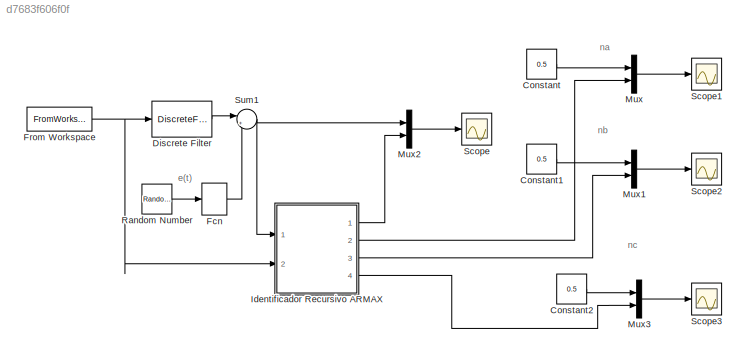
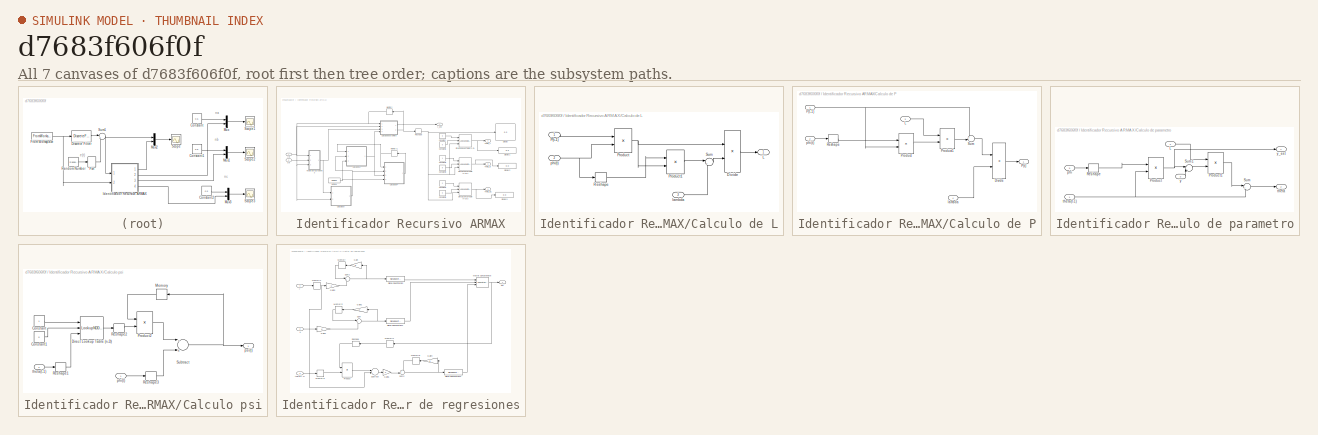
[diagram: thumbnail index - all 7 canvases of the model, root first then tree order]
MODEL slx_d7683f606f0f
KIND model
CONFIG AbsTol = auto
CONFIG FixedStep = auto
CONFIG MaxStep = auto
CONFIG MinStep = auto
CONFIG RelTol = 1e-3
CONFIG SampleTimeConstraint = Unconstrained
CONFIG Solver = ode45
CONFIG SolverMode = Auto
CONFIG SolverName = ode45
CONFIG StartTime = 0.0
CONFIG StopTime = 1000
BLOCK [DiscreteTransferFcn]  Fcn
  Denominator = [1]
  InputPortMap = u0
  Ports = [1, 1]
BLOCK [Constant] Constant
  Value = 0.5
BLOCK [Constant] Constant1
  Value = 0.5
BLOCK [Constant] Constant2
  Value = 0.5
BLOCK [DiscreteFilter] Discrete Filter
  Denominator = [1 -0.8]
  InputPortMap = u0
  Numerator = [0.5]
  Ports = [1, 1]
  SampleTime = 0.01
BLOCK [FromWorkspace] From Workspace
  SampleTime = 0.01
  VariableName = prbs
  ZeroCross = on
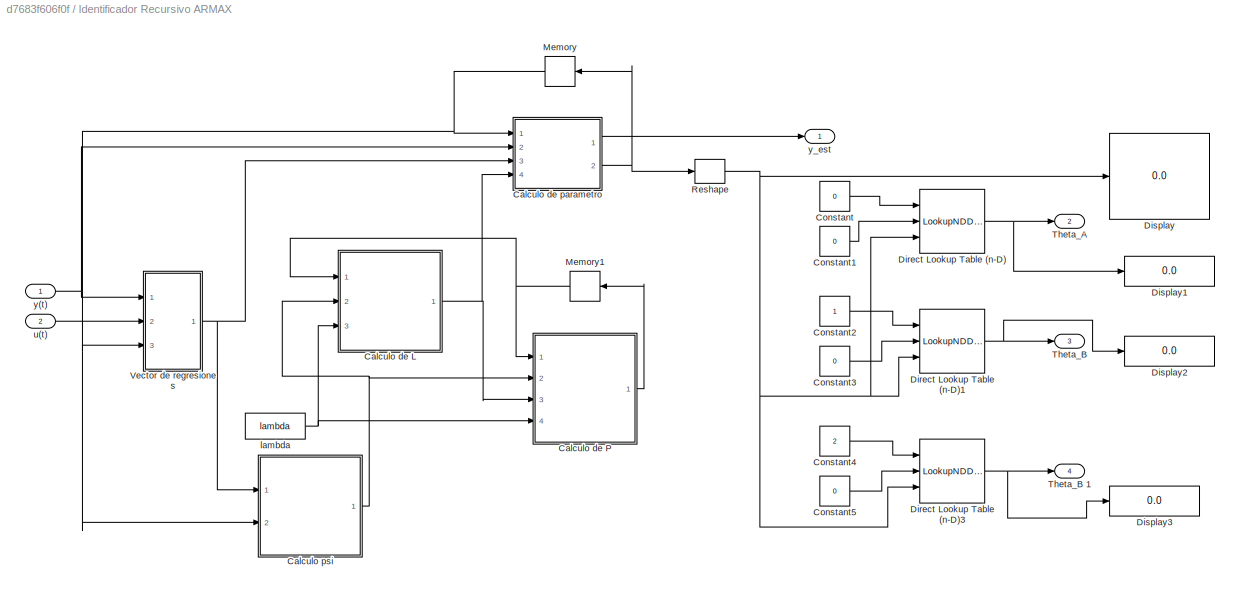
BLOCK [SubSystem] Identificador Recursivo ARMAX
  Ports = [2, 4]
  RequestExecContextInheritance = off
BLOCK [SubSystem] Identificador Recursivo ARMAX/Calculo de L
  Ports = [3, 1]
  RequestExecContextInheritance = off
BLOCK [Product] Identificador Recursivo ARMAX/Calculo de L/Divide
  InputSameDT = off
  Inputs = */
  OutDataTypeStr = Inherit: Inherit via internal rule
  Ports = [2, 1]
  RndMeth = Floor
  SaturateOnIntegerOverflow = off
BLOCK [Outport] Identificador Recursivo ARMAX/Calculo de L/L
  IconDisplay = Port number
BLOCK [Inport] Identificador Recursivo ARMAX/Calculo de L/P(t-1)
  IconDisplay = Port number
BLOCK [Product] Identificador Recursivo ARMAX/Calculo de L/Product
  InputSameDT = off
  Multiplication = Matrix(*)
  OutDataTypeStr = Inherit: Inherit via internal rule
  Ports = [2, 1]
  RndMeth = Floor
  SaturateOnIntegerOverflow = off
BLOCK [Product] Identificador Recursivo ARMAX/Calculo de L/Product1
  InputSameDT = off
  Multiplication = Matrix(*)
  OutDataTypeStr = Inherit: Inherit via internal rule
  Ports = [2, 1]
  RndMeth = Floor
  SaturateOnIntegerOverflow = off
BLOCK [Reshape] Identificador Recursivo ARMAX/Calculo de L/Reshape
  OutputDimensionality = Row vector (2-D)
  Ports = [1, 1]
BLOCK [Sum] Identificador Recursivo ARMAX/Calculo de L/Sum
  IconShape = round
  InputSameDT = off
  Inputs = |++
  OutDataTypeStr = Inherit: Inherit via internal rule
  Ports = [2, 1]
  SaturateOnIntegerOverflow = off
BLOCK [Inport] Identificador Recursivo ARMAX/Calculo de L/lambda
  IconDisplay = Port number
  Port = 3
BLOCK [Inport] Identificador Recursivo ARMAX/Calculo de L/phi(t)
  IconDisplay = Port number
  Port = 2
BLOCK [SubSystem] Identificador Recursivo ARMAX/Calculo de P
  Ports = [4, 1]
  RequestExecContextInheritance = off
BLOCK [Product] Identificador Recursivo ARMAX/Calculo de P/Divide
  InputSameDT = off
  Inputs = */
  OutDataTypeStr = Inherit: Inherit via internal rule
  Ports = [2, 1]
  RndMeth = Floor
  SaturateOnIntegerOverflow = off
BLOCK [Inport] Identificador Recursivo ARMAX/Calculo de P/L
  IconDisplay = Port number
  Port = 3
BLOCK [Outport] Identificador Recursivo ARMAX/Calculo de P/P(t)
  IconDisplay = Port number
BLOCK [Inport] Identificador Recursivo ARMAX/Calculo de P/P(t-1)
  IconDisplay = Port number
BLOCK [Product] Identificador Recursivo ARMAX/Calculo de P/Product
  InputSameDT = off
  Multiplication = Matrix(*)
  OutDataTypeStr = Inherit: Inherit via internal rule
  Ports = [2, 1]
  RndMeth = Floor
  SaturateOnIntegerOverflow = off
BLOCK [Product] Identificador Recursivo ARMAX/Calculo de P/Product1
  InputSameDT = off
  Multiplication = Matrix(*)
  OutDataTypeStr = Inherit: Inherit via internal rule
  Ports = [2, 1]
  RndMeth = Floor
  SaturateOnIntegerOverflow = off
BLOCK [Reshape] Identificador Recursivo ARMAX/Calculo de P/Reshape
  OutputDimensionality = Row vector (2-D)
  Ports = [1, 1]
BLOCK [Sum] Identificador Recursivo ARMAX/Calculo de P/Sum
  IconShape = round
  InputSameDT = off
  Inputs = +-|
  OutDataTypeStr = Inherit: Inherit via internal rule
  Ports = [2, 1]
  SaturateOnIntegerOverflow = off
BLOCK [Inport] Identificador Recursivo ARMAX/Calculo de P/lambda
  IconDisplay = Port number
  Port = 4
BLOCK [Inport] Identificador Recursivo ARMAX/Calculo de P/phi(t)
  IconDisplay = Port number
  Port = 2
BLOCK [SubSystem] Identificador Recursivo ARMAX/Calculo de parametro
  Ports = [4, 2]
  RequestExecContextInheritance = off
BLOCK [Inport] Identificador Recursivo ARMAX/Calculo de parametro/L
  IconDisplay = Port number
  Port = 4
BLOCK [Product] Identificador Recursivo ARMAX/Calculo de parametro/Product
  InputSameDT = off
  Multiplication = Matrix(*)
  OutDataTypeStr = Inherit: Inherit via internal rule
  Ports = [2, 1]
  RndMeth = Floor
  SaturateOnIntegerOverflow = off
BLOCK [Product] Identificador Recursivo ARMAX/Calculo de parametro/Product1
  InputSameDT = off
  Multiplication = Matrix(*)
  OutDataTypeStr = Inherit: Inherit via internal rule
  Ports = [2, 1]
  RndMeth = Floor
  SaturateOnIntegerOverflow = off
BLOCK [Reshape] Identificador Recursivo ARMAX/Calculo de parametro/Reshape
  OutputDimensionality = Row vector (2-D)
  Ports = [1, 1]
BLOCK [Sum] Identificador Recursivo ARMAX/Calculo de parametro/Sum
  IconShape = round
  InputSameDT = off
  Inputs = |++
  OutDataTypeStr = Inherit: Inherit via internal rule
  Ports = [2, 1]
  SaturateOnIntegerOverflow = off
BLOCK [Sum] Identificador Recursivo ARMAX/Calculo de parametro/Sum1
  IconShape = round
  InputSameDT = off
  Inputs = |-+
  OutDataTypeStr = Inherit: Inherit via internal rule
  Ports = [2, 1]
  SaturateOnIntegerOverflow = off
BLOCK [Inport] Identificador Recursivo ARMAX/Calculo de parametro/phi
  IconDisplay = Port number
  Port = 3
BLOCK [Outport] Identificador Recursivo ARMAX/Calculo de parametro/theta
  IconDisplay = Port number
  Port = 2
BLOCK [Inport] Identificador Recursivo ARMAX/Calculo de parametro/theta(t-1)
  IconDisplay = Port number
BLOCK [Inport] Identificador Recursivo ARMAX/Calculo de parametro/y
  IconDisplay = Port number
  Port = 2
BLOCK [Outport] Identificador Recursivo ARMAX/Calculo de parametro/y_est
  IconDisplay = Port number
BLOCK [SubSystem] Identificador Recursivo ARMAX/Calculo psi
  Ports = [2, 1]
  RequestExecContextInheritance = off
BLOCK [Constant] Identificador Recursivo ARMAX/Calculo psi/Constant
BLOCK [Constant] Identificador Recursivo ARMAX/Calculo psi/Constant1
  Value = 0
BLOCK [LookupNDDirect] Identificador Recursivo ARMAX/Calculo psi/Direct Lookup Table (n-D)
  DiagnosticForOutOfRangeInput = Error
  Ports = [3, 1]
  Table = [4 5 ;16 19 ]
  TableIsInput = on
BLOCK [Memory] Identificador Recursivo ARMAX/Calculo psi/Memory
BLOCK [Product] Identificador Recursivo ARMAX/Calculo psi/Product2
  InputSameDT = off
  Multiplication = Matrix(*)
  OutDataTypeStr = Inherit: Inherit via internal rule
  Ports = [2, 1]
  RndMeth = Floor
  SaturateOnIntegerOverflow = off
BLOCK [Reshape] Identificador Recursivo ARMAX/Calculo psi/Reshape1
  OutputDimensionality = Column vector (2-D)
  Ports = [1, 1]
BLOCK [Reshape] Identificador Recursivo ARMAX/Calculo psi/Reshape2
  OutputDimensionality = Column vector (2-D)
  Ports = [1, 1]
BLOCK [Reshape] Identificador Recursivo ARMAX/Calculo psi/Reshape3
  OutputDimensionality = Column vector (2-D)
  Ports = [1, 1]
BLOCK [Sum] Identificador Recursivo ARMAX/Calculo psi/Subtract
  InputSameDT = off
  Inputs = -+
  OutDataTypeStr = Inherit: Inherit via internal rule
  Ports = [2, 1]
  SaturateOnIntegerOverflow = off
BLOCK [Inport] Identificador Recursivo ARMAX/Calculo psi/phi(t)
  IconDisplay = Port number
BLOCK [Outport] Identificador Recursivo ARMAX/Calculo psi/psi(t)
  IconDisplay = Port number
BLOCK [Inport] Identificador Recursivo ARMAX/Calculo psi/theta(t-1)
  IconDisplay = Port number
  Port = 2
BLOCK [Constant] Identificador Recursivo ARMAX/Constant
  Value = 0
BLOCK [Constant] Identificador Recursivo ARMAX/Constant1
  Value = 0
BLOCK [Constant] Identificador Recursivo ARMAX/Constant2
BLOCK [Constant] Identificador Recursivo ARMAX/Constant3
  Value = 0
BLOCK [Constant] Identificador Recursivo ARMAX/Constant4
  Value = 2
BLOCK [Constant] Identificador Recursivo ARMAX/Constant5
  Value = 0
BLOCK [LookupNDDirect] Identificador Recursivo ARMAX/Direct Lookup Table (n-D)
  DiagnosticForOutOfRangeInput = Error
  Ports = [3, 1]
  Table = [4 5 ;16 19 ]
  TableIsInput = on
BLOCK [LookupNDDirect] Identificador Recursivo ARMAX/Direct Lookup Table (n-D)1
  DiagnosticForOutOfRangeInput = Error
  Ports = [3, 1]
  Table = [4 5 ;16 19 ]
  TableIsInput = on
BLOCK [LookupNDDirect] Identificador Recursivo ARMAX/Direct Lookup Table (n-D)3
  DiagnosticForOutOfRangeInput = Error
  Ports = [3, 1]
  Table = [4 5 ;16 19 ]
  TableIsInput = on
BLOCK [Display] Identificador Recursivo ARMAX/Display
  Decimation = 1
  Ports = [1]
BLOCK [Display] Identificador Recursivo ARMAX/Display1
  Decimation = 1
  Ports = [1]
BLOCK [Display] Identificador Recursivo ARMAX/Display2
  Decimation = 1
  Ports = [1]
BLOCK [Display] Identificador Recursivo ARMAX/Display3
  Decimation = 1
  Ports = [1]
BLOCK [Memory] Identificador Recursivo ARMAX/Memory
BLOCK [Memory] Identificador Recursivo ARMAX/Memory1
  X0 = 1e6*eye(3)
BLOCK [Reshape] Identificador Recursivo ARMAX/Reshape
  OutputDimensionality = Column vector (2-D)
  Ports = [1, 1]
BLOCK [Outport] Identificador Recursivo ARMAX/Theta_A
  IconDisplay = Port number
  Port = 2
BLOCK [Outport] Identificador Recursivo ARMAX/Theta_B 
  IconDisplay = Port number
  Port = 3
BLOCK [Outport] Identificador Recursivo ARMAX/Theta_B 1
  IconDisplay = Port number
  Port = 4
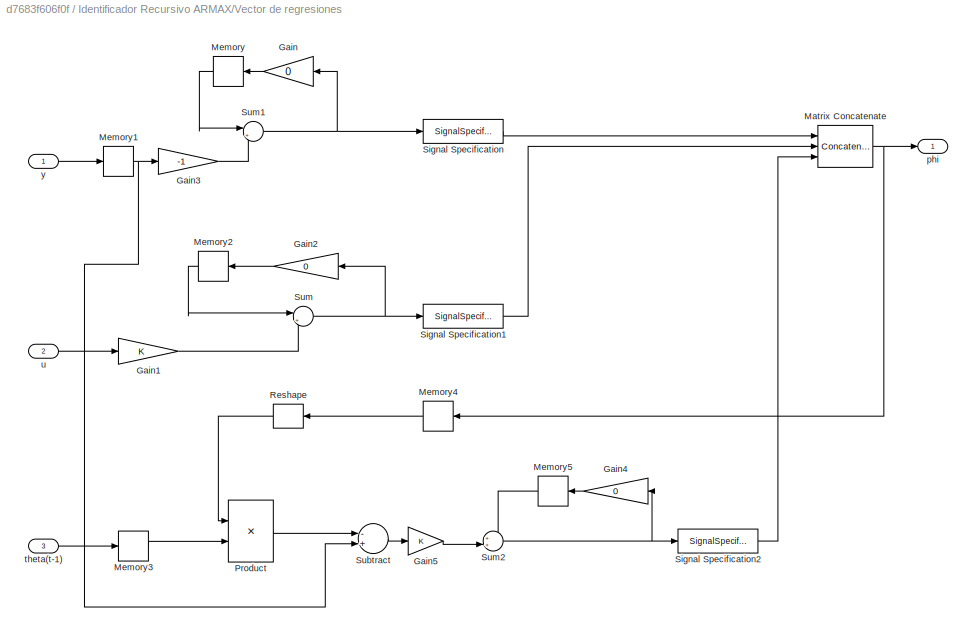
BLOCK [SubSystem] Identificador Recursivo ARMAX/Vector de regresiones
  Ports = [3, 1]
  RequestExecContextInheritance = off
BLOCK [Gain] Identificador Recursivo ARMAX/Vector de regresiones/Gain
  Gain = 0
  Multiplication = Matrix(K*u)
  OutDataTypeStr = Inherit: Inherit via internal rule
  ParamDataTypeStr = Inherit: Inherit via internal rule
  SaturateOnIntegerOverflow = off
BLOCK [Gain] Identificador Recursivo ARMAX/Vector de regresiones/Gain1
  Multiplication = Matrix(K*u)
  OutDataTypeStr = Inherit: Inherit via internal rule
  ParamDataTypeStr = Inherit: Inherit via internal rule
  SaturateOnIntegerOverflow = off
BLOCK [Gain] Identificador Recursivo ARMAX/Vector de regresiones/Gain2
  Gain = 0
  Multiplication = Matrix(K*u)
  OutDataTypeStr = Inherit: Inherit via internal rule
  ParamDataTypeStr = Inherit: Inherit via internal rule
  SaturateOnIntegerOverflow = off
BLOCK [Gain] Identificador Recursivo ARMAX/Vector de regresiones/Gain3
  Gain = -1
  Multiplication = Matrix(K*u)
  OutDataTypeStr = Inherit: Inherit via internal rule
  ParamDataTypeStr = Inherit: Inherit via internal rule
  SaturateOnIntegerOverflow = off
BLOCK [Gain] Identificador Recursivo ARMAX/Vector de regresiones/Gain4
  Gain = 0
  Multiplication = Matrix(K*u)
  OutDataTypeStr = Inherit: Inherit via internal rule
  ParamDataTypeStr = Inherit: Inherit via internal rule
  SaturateOnIntegerOverflow = off
BLOCK [Gain] Identificador Recursivo ARMAX/Vector de regresiones/Gain5
  Multiplication = Matrix(K*u)
  OutDataTypeStr = Inherit: Inherit via internal rule
  ParamDataTypeStr = Inherit: Inherit via internal rule
  SaturateOnIntegerOverflow = off
BLOCK [Concatenate] Identificador Recursivo ARMAX/Vector de regresiones/Matrix Concatenate
  Mode = Multidimensional array
  NumInputs = 3
  Ports = [3, 1]
BLOCK [Memory] Identificador Recursivo ARMAX/Vector de regresiones/Memory
BLOCK [Memory] Identificador Recursivo ARMAX/Vector de regresiones/Memory1
BLOCK [Memory] Identificador Recursivo ARMAX/Vector de regresiones/Memory2
BLOCK [Memory] Identificador Recursivo ARMAX/Vector de regresiones/Memory3
BLOCK [Memory] Identificador Recursivo ARMAX/Vector de regresiones/Memory4
BLOCK [Memory] Identificador Recursivo ARMAX/Vector de regresiones/Memory5
BLOCK [Product] Identificador Recursivo ARMAX/Vector de regresiones/Product
  InputSameDT = off
  Multiplication = Matrix(*)
  OutDataTypeStr = Inherit: Inherit via internal rule
  Ports = [2, 1]
  RndMeth = Floor
  SaturateOnIntegerOverflow = off
BLOCK [Reshape] Identificador Recursivo ARMAX/Vector de regresiones/Reshape
  OutputDimensionality = Row vector (2-D)
  Ports = [1, 1]
BLOCK [SignalSpecification] Identificador Recursivo ARMAX/Vector de regresiones/Signal Specification
  Dimensions = [1 1]
BLOCK [SignalSpecification] Identificador Recursivo ARMAX/Vector de regresiones/Signal Specification1
  Dimensions = [1 1]
BLOCK [SignalSpecification] Identificador Recursivo ARMAX/Vector de regresiones/Signal Specification2
  Dimensions = [1 1]
BLOCK [Sum] Identificador Recursivo ARMAX/Vector de regresiones/Subtract
  InputSameDT = off
  Inputs = -+
  OutDataTypeStr = Inherit: Inherit via internal rule
  Ports = [2, 1]
  SaturateOnIntegerOverflow = off
BLOCK [Sum] Identificador Recursivo ARMAX/Vector de regresiones/Sum
  IconShape = round
  InputSameDT = off
  Inputs = |++
  OutDataTypeStr = Inherit: Inherit via internal rule
  Ports = [2, 1]
  SaturateOnIntegerOverflow = off
BLOCK [Sum] Identificador Recursivo ARMAX/Vector de regresiones/Sum1
  IconShape = round
  InputSameDT = off
  Inputs = |++
  OutDataTypeStr = Inherit: Inherit via internal rule
  Ports = [2, 1]
  SaturateOnIntegerOverflow = off
BLOCK [Sum] Identificador Recursivo ARMAX/Vector de regresiones/Sum2
  IconShape = round
  InputSameDT = off
  Inputs = ++|
  OutDataTypeStr = Inherit: Inherit via internal rule
  Ports = [2, 1]
  SaturateOnIntegerOverflow = off
BLOCK [Outport] Identificador Recursivo ARMAX/Vector de regresiones/phi
  IconDisplay = Port number
BLOCK [Inport] Identificador Recursivo ARMAX/Vector de regresiones/theta(t-1)
  IconDisplay = Port number
  Port = 3
BLOCK [Inport] Identificador Recursivo ARMAX/Vector de regresiones/u
  IconDisplay = Port number
  Port = 2
BLOCK [Inport] Identificador Recursivo ARMAX/Vector de regresiones/y
  IconDisplay = Port number
BLOCK [Constant] Identificador Recursivo ARMAX/lambda
  Value = lambda
BLOCK [Inport] Identificador Recursivo ARMAX/u(t)
  IconDisplay = Port number
  Port = 2
BLOCK [Inport] Identificador Recursivo ARMAX/y(t)
  IconDisplay = Port number
BLOCK [Outport] Identificador Recursivo ARMAX/y_est
  IconDisplay = Port number
BLOCK [Mux] Mux
  DisplayOption = bar
  Inputs = 2
  Ports = [2, 1]
BLOCK [Mux] Mux1
  DisplayOption = bar
  Inputs = 2
  Ports = [2, 1]
BLOCK [Mux] Mux2
  DisplayOption = bar
  Inputs = 2
  Ports = [2, 1]
BLOCK [Mux] Mux3
  DisplayOption = bar
  Inputs = 2
  Ports = [2, 1]
BLOCK [RandomNumber] Random Number
  SampleTime = 0.1
BLOCK [Scope] Scope
  Floating = off
  NumInputPorts = 1
  Ports = [1]
BLOCK [Scope] Scope1
  Floating = off
  NumInputPorts = 1
  Ports = [1]
  SaveName = ScopeData1
BLOCK [Scope] Scope2
  Floating = off
  NumInputPorts = 1
  Ports = [1]
  SaveName = ScopeData2
  TimeRange = 10
  ZoomMode = yonly
BLOCK [Scope] Scope3
  Floating = off
  NumInputPorts = 1
  Ports = [1]
  SaveName = ScopeData3
  TimeRange = 10
  ZoomMode = yonly
BLOCK [Sum] Sum1
  IconShape = round
  InputSameDT = off
  Inputs = |++
  OutDataTypeStr = Inherit: Inherit via internal rule
  Ports = [2, 1]
  SaturateOnIntegerOverflow = off
ANNOTATION (root): e(t)
ANNOTATION (root): na
ANNOTATION (root): nb
ANNOTATION (root): nc
LINE  Fcn:1 -> Sum1:2
LINE Constant1:1 -> Mux1:1
LINE Constant2:1 -> Mux3:1
LINE Constant:1 -> Mux:1
LINE Discrete Filter:1 -> Sum1:1
NET From Workspace:1 -> Discrete Filter:1, Identificador Recursivo ARMAX:2
LINE Identificador Recursivo ARMAX/Calculo de L/Divide:1 -> Identificador Recursivo ARMAX/Calculo de L/L:1
LINE Identificador Recursivo ARMAX/Calculo de L/P(t-1):1 -> Identificador Recursivo ARMAX/Calculo de L/Product:1
LINE Identificador Recursivo ARMAX/Calculo de L/Product1:1 -> Identificador Recursivo ARMAX/Calculo de L/Sum:1
NET Identificador Recursivo ARMAX/Calculo de L/Product:1 -> Identificador Recursivo ARMAX/Calculo de L/Divide:1, Identificador Recursivo ARMAX/Calculo de L/Product1:2
LINE Identificador Recursivo ARMAX/Calculo de L/Reshape:1 -> Identificador Recursivo ARMAX/Calculo de L/Product1:1
LINE Identificador Recursivo ARMAX/Calculo de L/Sum:1 -> Identificador Recursivo ARMAX/Calculo de L/Divide:2
LINE Identificador Recursivo ARMAX/Calculo de L/lambda:1 -> Identificador Recursivo ARMAX/Calculo de L/Sum:2
NET Identificador Recursivo ARMAX/Calculo de L/phi(t):1 -> Identificador Recursivo ARMAX/Calculo de L/Product:2, Identificador Recursivo ARMAX/Calculo de L/Reshape:1
NET Identificador Recursivo ARMAX/Calculo de L:1 -> Identificador Recursivo ARMAX/Calculo de P:3, Identificador Recursivo ARMAX/Calculo de parametro:4
LINE Identificador Recursivo ARMAX/Calculo de P/Divide:1 -> Identificador Recursivo ARMAX/Calculo de P/P(t):1
LINE Identificador Recursivo ARMAX/Calculo de P/L:1 -> Identificador Recursivo ARMAX/Calculo de P/Product1:1
NET Identificador Recursivo ARMAX/Calculo de P/P(t-1):1 -> Identificador Recursivo ARMAX/Calculo de P/Product:2, Identificador Recursivo ARMAX/Calculo de P/Sum:1
LINE Identificador Recursivo ARMAX/Calculo de P/Product1:1 -> Identificador Recursivo ARMAX/Calculo de P/Sum:2
LINE Identificador Recursivo ARMAX/Calculo de P/Product:1 -> Identificador Recursivo ARMAX/Calculo de P/Product1:2
LINE Identificador Recursivo ARMAX/Calculo de P/Reshape:1 -> Identificador Recursivo ARMAX/Calculo de P/Product:1
LINE Identificador Recursivo ARMAX/Calculo de P/Sum:1 -> Identificador Recursivo ARMAX/Calculo de P/Divide:1
LINE Identificador Recursivo ARMAX/Calculo de P/lambda:1 -> Identificador Recursivo ARMAX/Calculo de P/Divide:2
LINE Identificador Recursivo ARMAX/Calculo de P/phi(t):1 -> Identificador Recursivo ARMAX/Calculo de P/Reshape:1
LINE Identificador Recursivo ARMAX/Calculo de P:1 -> Identificador Recursivo ARMAX/Memory1:1
LINE Identificador Recursivo ARMAX/Calculo de parametro/L:1 -> Identificador Recursivo ARMAX/Calculo de parametro/Product1:1
LINE Identificador Recursivo ARMAX/Calculo de parametro/Product1:1 -> Identificador Recursivo ARMAX/Calculo de parametro/Sum:1
NET Identificador Recursivo ARMAX/Calculo de parametro/Product:1 -> Identificador Recursivo ARMAX/Calculo de parametro/Sum1:1, Identificador Recursivo ARMAX/Calculo de parametro/y_est:1
LINE Identificador Recursivo ARMAX/Calculo de parametro/Reshape:1 -> Identificador Recursivo ARMAX/Calculo de parametro/Product:1
LINE Identificador Recursivo ARMAX/Calculo de parametro/Sum1:1 -> Identificador Recursivo ARMAX/Calculo de parametro/Product1:2
LINE Identificador Recursivo ARMAX/Calculo de parametro/Sum:1 -> Identificador Recursivo ARMAX/Calculo de parametro/theta:1
LINE Identificador Recursivo ARMAX/Calculo de parametro/phi:1 -> Identificador Recursivo ARMAX/Calculo de parametro/Reshape:1
NET Identificador Recursivo ARMAX/Calculo de parametro/theta(t-1):1 -> Identificador Recursivo ARMAX/Calculo de parametro/Product:2, Identificador Recursivo ARMAX/Calculo de parametro/Sum:2
LINE Identificador Recursivo ARMAX/Calculo de parametro/y:1 -> Identificador Recursivo ARMAX/Calculo de parametro/Sum1:2
LINE Identificador Recursivo ARMAX/Calculo de parametro:1 -> Identificador Recursivo ARMAX/y_est:1
NET Identificador Recursivo ARMAX/Calculo de parametro:2 -> Identificador Recursivo ARMAX/Memory:1, Identificador Recursivo ARMAX/Reshape:1
LINE Identificador Recursivo ARMAX/Calculo psi/Constant1:1 -> Identificador Recursivo ARMAX/Calculo psi/Direct Lookup Table (n-D):2
LINE Identificador Recursivo ARMAX/Calculo psi/Constant:1 -> Identificador Recursivo ARMAX/Calculo psi/Direct Lookup Table (n-D):1
LINE Identificador Recursivo ARMAX/Calculo psi/Direct Lookup Table (n-D):1 -> Identificador Recursivo ARMAX/Calculo psi/Reshape2:1
LINE Identificador Recursivo ARMAX/Calculo psi/Memory:1 -> Identificador Recursivo ARMAX/Calculo psi/Product2:1
LINE Identificador Recursivo ARMAX/Calculo psi/Product2:1 -> Identificador Recursivo ARMAX/Calculo psi/Subtract:1
LINE Identificador Recursivo ARMAX/Calculo psi/Reshape1:1 -> Identificador Recursivo ARMAX/Calculo psi/Direct Lookup Table (n-D):3
LINE Identificador Recursivo ARMAX/Calculo psi/Reshape2:1 -> Identificador Recursivo ARMAX/Calculo psi/Product2:2
LINE Identificador Recursivo ARMAX/Calculo psi/Reshape3:1 -> Identificador Recursivo ARMAX/Calculo psi/Subtract:2
NET Identificador Recursivo ARMAX/Calculo psi/Subtract:1 -> Identificador Recursivo ARMAX/Calculo psi/Memory:1, Identificador Recursivo ARMAX/Calculo psi/psi(t):1
LINE Identificador Recursivo ARMAX/Calculo psi/phi(t):1 -> Identificador Recursivo ARMAX/Calculo psi/Reshape3:1
LINE Identificador Recursivo ARMAX/Calculo psi/theta(t-1):1 -> Identificador Recursivo ARMAX/Calculo psi/Reshape1:1
NET Identificador Recursivo ARMAX/Calculo psi:1 -> Identificador Recursivo ARMAX/Calculo de L:2, Identificador Recursivo ARMAX/Calculo de P:2
LINE Identificador Recursivo ARMAX/Constant1:1 -> Identificador Recursivo ARMAX/Direct Lookup Table (n-D):2
LINE Identificador Recursivo ARMAX/Constant2:1 -> Identificador Recursivo ARMAX/Direct Lookup Table (n-D)1:1
LINE Identificador Recursivo ARMAX/Constant3:1 -> Identificador Recursivo ARMAX/Direct Lookup Table (n-D)1:2
LINE Identificador Recursivo ARMAX/Constant4:1 -> Identificador Recursivo ARMAX/Direct Lookup Table (n-D)3:1
LINE Identificador Recursivo ARMAX/Constant5:1 -> Identificador Recursivo ARMAX/Direct Lookup Table (n-D)3:2
LINE Identificador Recursivo ARMAX/Constant:1 -> Identificador Recursivo ARMAX/Direct Lookup Table (n-D):1
NET Identificador Recursivo ARMAX/Direct Lookup Table (n-D)1:1 -> Identificador Recursivo ARMAX/Display2:1, Identificador Recursivo ARMAX/Theta_B :1
NET Identificador Recursivo ARMAX/Direct Lookup Table (n-D)3:1 -> Identificador Recursivo ARMAX/Display3:1, Identificador Recursivo ARMAX/Theta_B 1:1
NET Identificador Recursivo ARMAX/Direct Lookup Table (n-D):1 -> Identificador Recursivo ARMAX/Display1:1, Identificador Recursivo ARMAX/Theta_A:1
NET Identificador Recursivo ARMAX/Memory1:1 -> Identificador Recursivo ARMAX/Calculo de L:1, Identificador Recursivo ARMAX/Calculo de P:1
NET Identificador Recursivo ARMAX/Memory:1 -> Identificador Recursivo ARMAX/Calculo de parametro:1, Identificador Recursivo ARMAX/Calculo psi:2, Identificador Recursivo ARMAX/Vector de regresiones:3
NET Identificador Recursivo ARMAX/Reshape:1 -> Identificador Recursivo ARMAX/Direct Lookup Table (n-D)1:3, Identificador Recursivo ARMAX/Direct Lookup Table (n-D)3:3, Identificador Recursivo ARMAX/Direct Lookup Table (n-D):3, Identificador Recursivo ARMAX/Display:1
LINE Identificador Recursivo ARMAX/Vector de regresiones/Gain1:1 -> Identificador Recursivo ARMAX/Vector de regresiones/Sum:2
LINE Identificador Recursivo ARMAX/Vector de regresiones/Gain2:1 -> Identificador Recursivo ARMAX/Vector de regresiones/Memory2:1
LINE Identificador Recursivo ARMAX/Vector de regresiones/Gain3:1 -> Identificador Recursivo ARMAX/Vector de regresiones/Sum1:2
LINE Identificador Recursivo ARMAX/Vector de regresiones/Gain4:1 -> Identificador Recursivo ARMAX/Vector de regresiones/Memory5:1
LINE Identificador Recursivo ARMAX/Vector de regresiones/Gain5:1 -> Identificador Recursivo ARMAX/Vector de regresiones/Sum2:2
LINE Identificador Recursivo ARMAX/Vector de regresiones/Gain:1 -> Identificador Recursivo ARMAX/Vector de regresiones/Memory:1
NET Identificador Recursivo ARMAX/Vector de regresiones/Matrix Concatenate:1 -> Identificador Recursivo ARMAX/Vector de regresiones/Memory4:1, Identificador Recursivo ARMAX/Vector de regresiones/phi:1
NET Identificador Recursivo ARMAX/Vector de regresiones/Memory1:1 -> Identificador Recursivo ARMAX/Vector de regresiones/Gain3:1, Identificador Recursivo ARMAX/Vector de regresiones/Subtract:2
LINE Identificador Recursivo ARMAX/Vector de regresiones/Memory2:1 -> Identificador Recursivo ARMAX/Vector de regresiones/Sum:1
LINE Identificador Recursivo ARMAX/Vector de regresiones/Memory3:1 -> Identificador Recursivo ARMAX/Vector de regresiones/Product:2
LINE Identificador Recursivo ARMAX/Vector de regresiones/Memory4:1 -> Identificador Recursivo ARMAX/Vector de regresiones/Reshape:1
LINE Identificador Recursivo ARMAX/Vector de regresiones/Memory5:1 -> Identificador Recursivo ARMAX/Vector de regresiones/Sum2:1
LINE Identificador Recursivo ARMAX/Vector de regresiones/Memory:1 -> Identificador Recursivo ARMAX/Vector de regresiones/Sum1:1
LINE Identificador Recursivo ARMAX/Vector de regresiones/Product:1 -> Identificador Recursivo ARMAX/Vector de regresiones/Subtract:1
LINE Identificador Recursivo ARMAX/Vector de regresiones/Reshape:1 -> Identificador Recursivo ARMAX/Vector de regresiones/Product:1
LINE Identificador Recursivo ARMAX/Vector de regresiones/Signal Specification1:1 -> Identificador Recursivo ARMAX/Vector de regresiones/Matrix Concatenate:2
LINE Identificador Recursivo ARMAX/Vector de regresiones/Signal Specification2:1 -> Identificador Recursivo ARMAX/Vector de regresiones/Matrix Concatenate:3
LINE Identificador Recursivo ARMAX/Vector de regresiones/Signal Specification:1 -> Identificador Recursivo ARMAX/Vector de regresiones/Matrix Concatenate:1
LINE Identificador Recursivo ARMAX/Vector de regresiones/Subtract:1 -> Identificador Recursivo ARMAX/Vector de regresiones/Gain5:1
NET Identificador Recursivo ARMAX/Vector de regresiones/Sum1:1 -> Identificador Recursivo ARMAX/Vector de regresiones/Gain:1, Identificador Recursivo ARMAX/Vector de regresiones/Signal Specification:1
NET Identificador Recursivo ARMAX/Vector de regresiones/Sum2:1 -> Identificador Recursivo ARMAX/Vector de regresiones/Gain4:1, Identificador Recursivo ARMAX/Vector de regresiones/Signal Specification2:1
NET Identificador Recursivo ARMAX/Vector de regresiones/Sum:1 -> Identificador Recursivo ARMAX/Vector de regresiones/Gain2:1, Identificador Recursivo ARMAX/Vector de regresiones/Signal Specification1:1
LINE Identificador Recursivo ARMAX/Vector de regresiones/theta(t-1):1 -> Identificador Recursivo ARMAX/Vector de regresiones/Memory3:1
LINE Identificador Recursivo ARMAX/Vector de regresiones/u:1 -> Identificador Recursivo ARMAX/Vector de regresiones/Gain1:1
LINE Identificador Recursivo ARMAX/Vector de regresiones/y:1 -> Identificador Recursivo ARMAX/Vector de regresiones/Memory1:1
NET Identificador Recursivo ARMAX/Vector de regresiones:1 -> Identificador Recursivo ARMAX/Calculo de parametro:3, Identificador Recursivo ARMAX/Calculo psi:1
NET Identificador Recursivo ARMAX/lambda:1 -> Identificador Recursivo ARMAX/Calculo de L:3, Identificador Recursivo ARMAX/Calculo de P:4
LINE Identificador Recursivo ARMAX/u(t):1 -> Identificador Recursivo ARMAX/Vector de regresiones:2
NET Identificador Recursivo ARMAX/y(t):1 -> Identificador Recursivo ARMAX/Calculo de parametro:2, Identificador Recursivo ARMAX/Vector de regresiones:1
LINE Identificador Recursivo ARMAX:1 -> Mux2:2
LINE Identificador Recursivo ARMAX:2 -> Mux:2
LINE Identificador Recursivo ARMAX:3 -> Mux1:2
LINE Identificador Recursivo ARMAX:4 -> Mux3:2
LINE Mux1:1 -> Scope2:1
LINE Mux2:1 -> Scope:1
LINE Mux3:1 -> Scope3:1
LINE Mux:1 -> Scope1:1
LINE Random Number:1 ->  Fcn:1
NET Sum1:1 -> Identificador Recursivo ARMAX:1, Mux2:1
note: NET lines group one-source signal fan-out (src -> all destinations, sorted); 1:1 wires keep LINE
